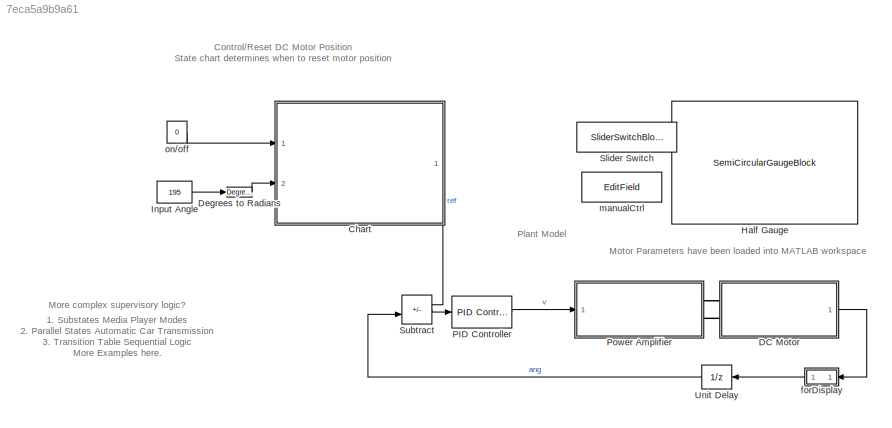
MODEL slx_7eca5a9b9a61
KIND model
CONFIG AbsTol = auto
CONFIG EnableMultiTasking = off
CONFIG FixedStep = auto
CONFIG MaxStep = auto
CONFIG MinStep = auto
CONFIG PostLoadFcn = load('dcmtr_params');
CONFIG RelTol = 1e-3
CONFIG SampleTimeConstraint = Unconstrained
CONFIG SolverName = ode15s
CONFIG StartTime = 0.0
CONFIG StopTime = inf
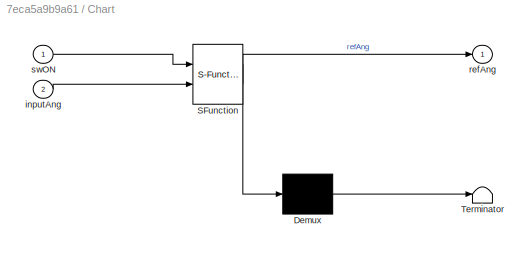
BLOCK [SubSystem] Chart
  ErrorFcn = Stateflow.Translate.translate
  PermitHierarchicalResolution = ExplicitOnly
  PortSchema = {"entries":[{"content":{"sides":[{"content":{"connectorIds":["In1","In2"]},"type":"ConnectorPlacement.EquallySpacedRectSide","uuid":"8e386dd2-2ebc-4763-aebf-f59259bbb5eb"},{"content":{"connectorIds":[],"side":"RIGHT"},"type":"ConnectorPlacement.EquallySpacedRectSide","uuid":"c3caac01-b458-4400-9120-ae3510b62e2d"},{"content":{"connectorIds":[],"side":"TOP"},"type":"ConnectorPlacement.EquallySpacedR...<+390ch>
  Ports = [2, 1]
  RequestExecContextInheritance = off
  SFBlockType = Chart
  TreatAsAtomicUnit = on
BLOCK [Demux] Chart/ Demux 
  Outputs = 1
  Ports = [1, 1]
BLOCK [S-Function] Chart/ SFunction 
  EnableBusSupport = on
  FunctionName = sf_sfun
  PortCounts = [2 2]
  Ports = [2, 2]
  SFcnIsStateOwnerBlock = off
  SFunctionDeploymentMode = off
  Tag = Stateflow S-Function 3
BLOCK [Terminator] Chart/ Terminator 
BLOCK [Inport] Chart/inputAng
  Port = 2
BLOCK [Outport] Chart/refAng
BLOCK [Inport] Chart/swON
BLOCK [SubSystem] DC Motor
  Ports = [0, 1, 0, 0, 0, 2]
  ReferencedSubsystem = dcmtr
  RequestExecContextInheritance = off
BLOCK [Reference] Degrees to Radians  REF=simulink_extras/Transformations/Degrees to
Radians
  Ports = [1, 1]
  SourceBlock = simulink_extras/Transformations/Degrees to\nRadians
  SourceProductBaseCode = SL
  SourceType = DegreesToRadians
BLOCK [SemiCircularGaugeBlock] Half Gauge
  LabelPosition = Hide
  ScaleMax = 180
BLOCK [Constant] Input Angle
  Value = 195
BLOCK [Reference] PID Controller  REF=slpidlib/PID Controller
  Ports = [1, 1]
  SourceBlock = slpidlib/PID Controller
  SourceProductBaseCode = SL
  SourceType = PID 1dof
BLOCK [SubSystem] Power Amplifier
  Ports = [1, 0, 0, 0, 0, 0, 2]
  ReferencedSubsystem = powerAmp
  RequestExecContextInheritance = off
BLOCK [SliderSwitchBlock] Slider Switch
  LabelPosition = Hide
BLOCK [Sum] Subtract
  IconShape = rectangular
  Inputs = +-
  Ports = [2, 1]
BLOCK [UnitDelay] Unit Delay
  HasFrameUpgradeWarning = on
  NameLocation = top
  SampleTime = Ts
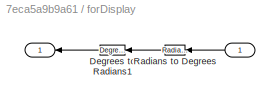
BLOCK [SubSystem] forDisplay
  Ports = [1, 1]
  RequestExecContextInheritance = off
BLOCK [Inport] forDisplay/ 
  NameLocation = top
BLOCK [Outport] forDisplay/  
BLOCK [Reference] forDisplay/Degrees to Radians1  REF=simulink_extras/Transformations/Degrees to
Radians
  NameLocation = top
  Ports = [1, 1]
  SourceBlock = simulink_extras/Transformations/Degrees to\nRadians
  SourceProductBaseCode = SL
  SourceType = DegreesToRadians
BLOCK [Reference] forDisplay/Radians to Degrees  REF=simulink_extras/Transformations/Radians
to Degrees
  NameLocation = top
  Ports = [1, 1]
  SourceBlock = simulink_extras/Transformations/Radians\nto Degrees
  SourceProductBaseCode = SL
  SourceType = RadiansToDegrees
BLOCK [EditField] manualCtrl
  Alignment = Center
  ShowInitialText = on
BLOCK [Constant] on//off
  OutDataTypeStr = boolean
  Value = 0
ANNOTATION (root): Control/Reset DC Motor Position State chart determines when to reset motor position
ANNOTATION (root): Motor Parameters have been loaded into MATLAB workspace
ANNOTATION (root): 1. Substates Media Player Modes 2. Parallel States Automatic Car Transmission 3. Transition Table Sequential Logic More Examples here .
ANNOTATION (root): More complex supervisory logic?
ANNOTATION (root): Plant Model
LINE Chart:1 -> Subtract:1
LINE DC Motor:1 -> forDisplay:1
LINE Degrees to Radians:1 -> Chart:2
LINE Input Angle:1 -> Degrees to Radians:1
LINE PID Controller:1 -> Power Amplifier:1
LINE Subtract:1 -> PID Controller:1
LINE Unit Delay:1 -> Subtract:2
LINE forDisplay/ :1 -> forDisplay/Radians to Degrees:1
LINE forDisplay/Degrees to Radians1:1 -> forDisplay/  :1
LINE forDisplay/Radians to Degrees:1 -> forDisplay/Degrees to Radians1:1
LINE forDisplay:1 -> Unit Delay:1
LINE on//off:1 -> Chart:1
PLINE DC Motor:LConn1 -- Power Amplifier:RConn1
PLINE DC Motor:LConn2 -- Power Amplifier:RConn2
CHART Chart states=5 transitions=9
  STATE_LABEL 'mtrCONTROLLED'
  STATE_LABEL 'mtrPAUSE\nrefAng = 0;'
  STATE_LABEL 'mtrMANUAL\nrefAng = inputAng;'
  STATE_LABEL 'mtrMAX\nrefAng = pi;'
  STATE_LABEL 'after(3,sec)'
  STATE_LABEL '[inputAng >=pi]'
  STATE_LABEL '[inputAng < pi]'
  STATE_LABEL '[inputAng >=pi]'
  STATE_LABEL 'mtrPAUSE\nrefAng = 0;'
  STATE_LABEL 'mtrMANUAL\nrefAng = inputAng;'
  STATE_LABEL 'mtrMAX\nrefAng = pi;'
  STATE_LABEL 'mtrZERO\nrefAng = 0;'
CHART  states=0 transitions=0
